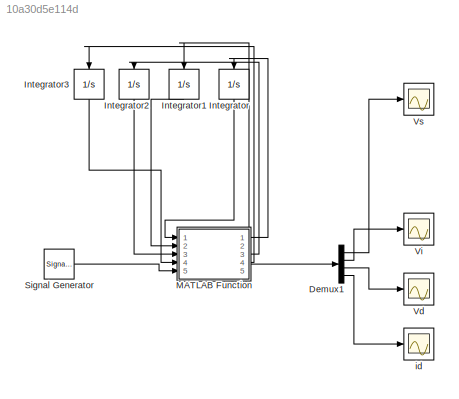
MODEL slx_10a30d5e114d
KIND model
CONFIG AbsTol = auto
CONFIG EnableMultiTasking = off
CONFIG FixedStep = 0.001
CONFIG MaxStep = auto
CONFIG MinStep = auto
CONFIG RelTol = 1e-3
CONFIG SampleTimeConstraint = Unconstrained
CONFIG Solver = VariableStepAuto
CONFIG SolverName = VariableStepAuto
CONFIG StartTime = 0.0
CONFIG StopTime = 0.8
BLOCK [Demux] Demux1
  DisplayOption = bar
  Ports = [1, 4]
BLOCK [Integrator] Integrator
  Ports = [1, 1]
BLOCK [Integrator] Integrator1
  Ports = [1, 1]
BLOCK [Integrator] Integrator2
  Ports = [1, 1]
BLOCK [Integrator] Integrator3
  Ports = [1, 1]
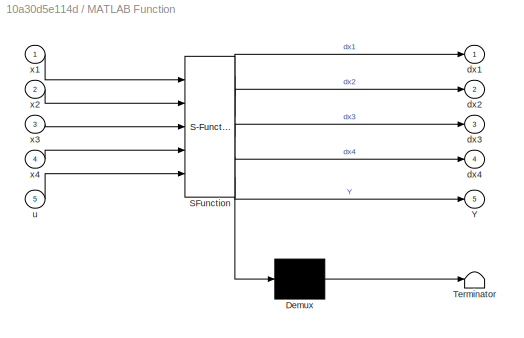
BLOCK [SubSystem] MATLAB Function
  ErrorFcn = Stateflow.Translate.translate
  PermitHierarchicalResolution = ExplicitOnly
  Ports = [5, 5]
  RequestExecContextInheritance = off
  SFBlockType = MATLAB Function
  TreatAsAtomicUnit = on
  Variant = off
BLOCK [Demux] MATLAB Function/ Demux 
  Outputs = 1
  Ports = [1, 1]
BLOCK [S-Function] MATLAB Function/ SFunction 
  EnableBusSupport = on
  FunctionName = sf_sfun
  PortCounts = [5 6]
  Ports = [5, 6]
  SFcnIsStateOwnerBlock = off
  SFunctionDeploymentMode = off
  Tag = Stateflow S-Function ee105lab5pt2 2
BLOCK [Terminator] MATLAB Function/ Terminator 
BLOCK [Outport] MATLAB Function/Y
  IconDisplay = Port number
  Port = 5
BLOCK [Outport] MATLAB Function/dx1
  IconDisplay = Port number
BLOCK [Outport] MATLAB Function/dx2
  IconDisplay = Port number
  Port = 2
BLOCK [Outport] MATLAB Function/dx3
  IconDisplay = Port number
  Port = 3
BLOCK [Outport] MATLAB Function/dx4
  IconDisplay = Port number
  Port = 4
BLOCK [Inport] MATLAB Function/u
  IconDisplay = Port number
  Port = 5
BLOCK [Inport] MATLAB Function/x1
  IconDisplay = Port number
BLOCK [Inport] MATLAB Function/x2
  IconDisplay = Port number
  Port = 2
BLOCK [Inport] MATLAB Function/x3
  IconDisplay = Port number
  Port = 3
BLOCK [Inport] MATLAB Function/x4
  IconDisplay = Port number
  Port = 4
BLOCK [SignalGenerator] Signal Generator
  Amplitude = 120
  Frequency = 60
  Ports = [0, 1]
BLOCK [Scope] Vd
  NumInputPorts = 1
  Ports = [1]
  ScopeSpecificationString = Simulink.scopes.TimeScopeBlockCfg('CurrentConfiguration', extmgr.ConfigurationSet(extmgr.Configuration('Core','General UI',true,'FigureColor',[1 1 1]),extmgr.Configuration('Core','Source UI',true),extmgr.Configuration('Sources','WiredSimulink',true,'DataLoggingVariableName','ScopeData2'),extmgr.Configuration('Visuals','Time Domain',true,'SerializedDisplays',{struct('MinYLimReal','-24.43584','MaxYL...<+1436ch>
BLOCK [Scope] Vi
  NumInputPorts = 1
  Ports = [1]
  ScopeSpecificationString = Simulink.scopes.TimeScopeBlockCfg('CurrentConfiguration', extmgr.ConfigurationSet(extmgr.Configuration('Core','General UI',true,'FigureColor',[1 1 1]),extmgr.Configuration('Core','Source UI',true),extmgr.Configuration('Sources','WiredSimulink',true,'DataLoggingVariableName','ScopeData1'),extmgr.Configuration('Visuals','Time Domain',true,'SerializedDisplays',{struct('MinYLimReal','-1.44707','MaxYLi...<+1437ch>
BLOCK [Scope] Vs 
  NumInputPorts = 1
  Ports = [1]
  ScopeSpecificationString = Simulink.scopes.TimeScopeBlockCfg('CurrentConfiguration', extmgr.ConfigurationSet(extmgr.Configuration('Core','General UI',true,'FigureColor',[1 1 1]),extmgr.Configuration('Core','Source UI',true),extmgr.Configuration('Sources','WiredSimulink',true,'DataLoggingVariableName','ScopeData1'),extmgr.Configuration('Visuals','Time Domain',true,'SerializedDisplays',{struct('MinYLimReal','-0.955','MaxYLimR...<+1420ch>
BLOCK [Scope] id
  NumInputPorts = 1
  Ports = [1]
  ScopeSpecificationString = Simulink.scopes.TimeScopeBlockCfg('CurrentConfiguration', extmgr.ConfigurationSet(extmgr.Configuration('Core','General UI',true,'FigureColor',[1 1 1]),extmgr.Configuration('Core','Source UI',true),extmgr.Configuration('Sources','WiredSimulink',true,'DataLoggingVariableName','ScopeData3'),extmgr.Configuration('Visuals','Time Domain',true,'SerializedDisplays',{struct('MinYLimReal','-0.40406','MaxYLi...<+1399ch>
LINE Demux1:1 -> Vs :1
LINE Demux1:2 -> Vi:1
LINE Demux1:3 -> Vd:1
LINE Demux1:4 -> id:1
LINE Integrator1:1 -> MATLAB Function:2
LINE Integrator2:1 -> MATLAB Function:3
LINE Integrator3:1 -> MATLAB Function:4
LINE Integrator:1 -> MATLAB Function:1
LINE MATLAB Function:1 -> Integrator:1
LINE MATLAB Function:2 -> Integrator1:1
LINE MATLAB Function:3 -> Integrator2:1
LINE MATLAB Function:4 -> Integrator3:1
LINE MATLAB Function:5 -> Demux1:1
LINE Signal Generator:1 -> MATLAB Function:5
CHART MATLAB Function states=1 transitions=1
  STATE_LABEL 'eML_blk_kernel()'
  STATE_LABEL 'SCRIPT:\n\nfunction [dx1,dx2,dx3,dx4,Y]= fxnblk(x1,x2,x3,x4,u) \nN = 10;\nC = .0001;\nR = 100;\nL = 0.883; %Derived from graph part 1\nVd = u/N - x1;\nid = diode(Vd);\n%dx1..dx4 derived from state space model \ndx1 = 1/C*(id-x2);\ndx2 = 1/L*(x1-x3); \ndx3 = 1/C*(x2-x4);\ndx4 = 1/L*(x3-R*x4);\nY = [R*x4,x1,Vd,id];\n\n\nend\n\n%Diode function provided in the lab\nfunction [id]=diode(vd) \nA = 0.0007;\nif vd > 0.7\nRd = 0....<+81ch>'
